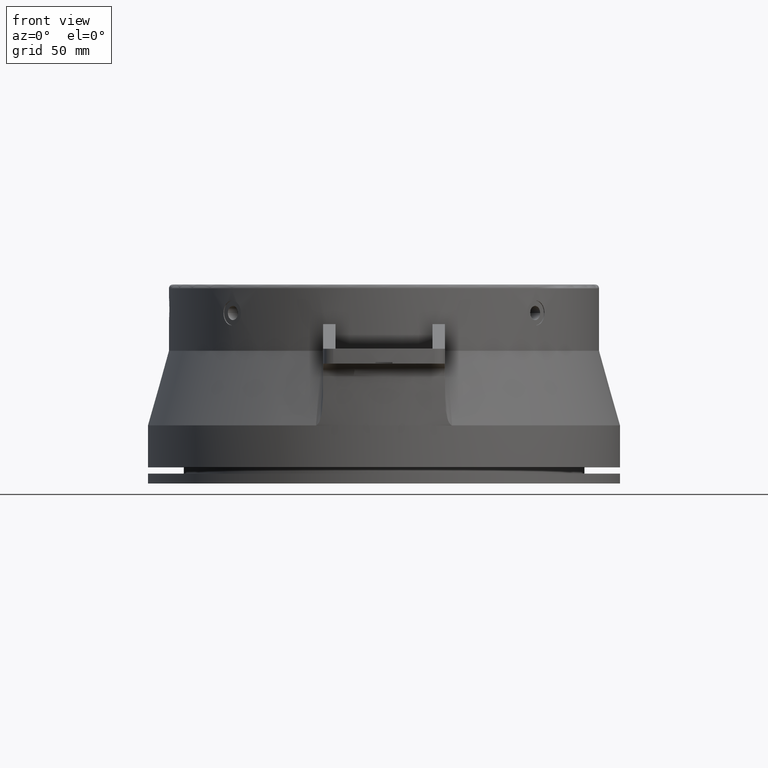
[diagram: clean part render]
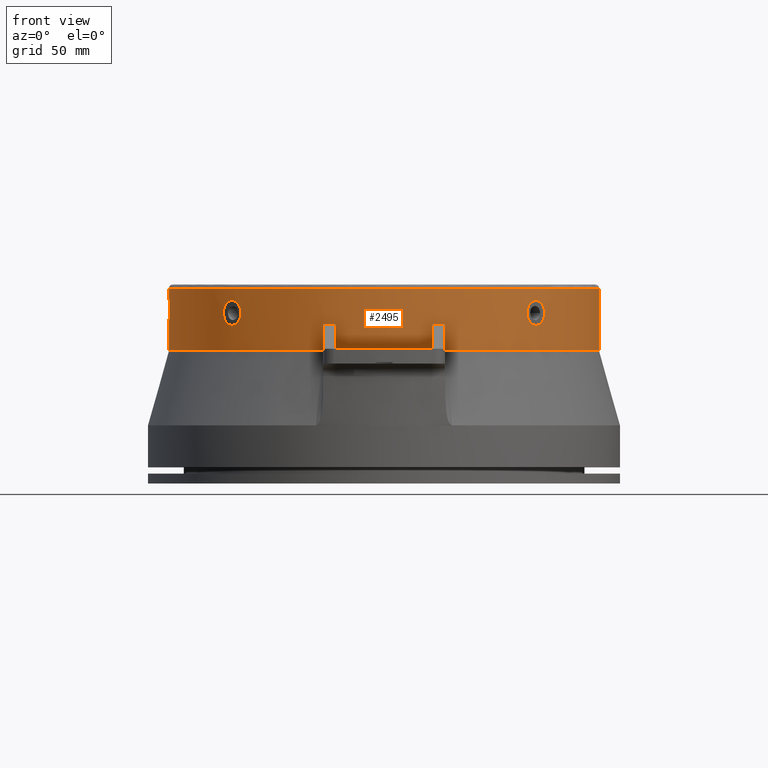
[diagram: same view with one face highlighted and labeled with its STEP entity id]
A machine part, front view. The second image highlights one B-rep face of the part: STEP entity #2495.
In plain terms, the highlighted cylindrical surface (partial cylindrical patch) has radius 174 mm, axis along (0, 0, 1).
Its self-contained STEP definition (entity closure, byte-faithful):
#530=CARTESIAN_POINT('',(-5.061878816674E1,-1.664744373307E2,
-5.359999999921E1));
#679=CARTESIAN_POINT('',(4.851759561495E1,-1.670989015995E2,-5.2E1));
#896=CARTESIAN_POINT('',(1.157621524504E2,-1.299042880741E2,-2.3E1));
#897=CARTESIAN_POINT('',(1.157621524504E2,-1.299042880741E2,-2.340440991359E1));
#898=CARTESIAN_POINT('',(1.157985436669E2,-1.298718723303E2,-2.420655662957E1));
#899=CARTESIAN_POINT('',(1.159614201266E2,-1.297265429984E2,-2.539777088484E1));
#900=CARTESIAN_POINT('',(1.162299222878E2,-1.294861603566E2,-2.655294007485E1));
#901=CARTESIAN_POINT('',(1.165996332599E2,-1.291535150981E2,-2.765706809689E1));
#902=CARTESIAN_POINT('',(1.170644512908E2,-1.287325589060E2,-2.869350260323E1));
#903=CARTESIAN_POINT('',(1.176166742702E2,-1.282284406845E2,-2.964708723912E1));
#904=CARTESIAN_POINT('',(1.182471369624E2,-1.276475181536E2,-3.050366302267E1));
#905=CARTESIAN_POINT('',(1.189454624641E2,-1.269972778718E2,-3.125060741790E1));
#906=CARTESIAN_POINT('',(1.197002586108E2,-1.262863088630E2,-3.187694056549E1));
#907=CARTESIAN_POINT('',(1.204994590769E2,-1.255241328420E2,-3.237358485605E1));
#908=CARTESIAN_POINT('',(1.213305336092E2,-1.247211382003E2,-3.273341378977E1));
#909=CARTESIAN_POINT('',(1.221807969415E2,-1.238883940595E2,-3.295134556826E1));
#910=CARTESIAN_POINT('',(1.230375722556E2,-1.230375720219E2,-3.302432719975E1));
#911=CARTESIAN_POINT('',(1.238883935261E2,-1.221807974801E2,-3.295134563272E1));
#912=CARTESIAN_POINT('',(1.247211378656E2,-1.213305339541E2,-3.273341391802E1));
#913=CARTESIAN_POINT('',(1.255241322875E2,-1.204994596532E2,-3.237358513567E1));
#914=CARTESIAN_POINT('',(1.262863081740E2,-1.197002593380E2,-3.187694109282E1));
#915=CARTESIAN_POINT('',(1.269972772781E2,-1.189454630979E2,-3.125060800527E1));
#916=CARTESIAN_POINT('',(1.276475174261E2,-1.182471377479E2,-3.050366397107E1));
#917=CARTESIAN_POINT('',(1.282284401539E2,-1.176166748489E2,-2.964708811292E1));
#918=CARTESIAN_POINT('',(1.287325582517E2,-1.170644520104E2,-2.869350400610E1));
#919=CARTESIAN_POINT('',(1.291535147033E2,-1.165996336978E2,-2.765706923283E1));
#920=CARTESIAN_POINT('',(1.294861599703E2,-1.162299227183E2,-2.655294157046E1));
#921=CARTESIAN_POINT('',(1.297265428062E2,-1.159614203420E2,-2.539777217430E1));
#922=CARTESIAN_POINT('',(1.298718723094E2,-1.157985436904E2,-2.420655712721E1));
#923=CARTESIAN_POINT('',(1.299042880741E2,-1.157621524504E2,-2.340441007938E1));
#924=CARTESIAN_POINT('',(1.299042880741E2,-1.157621524504E2,-2.3E1));
#926=CARTESIAN_POINT('',(1.299042880741E2,-1.157621524504E2,-2.3E1));
#927=CARTESIAN_POINT('',(1.299042880741E2,-1.157621524504E2,-2.259559003146E1));
#928=CARTESIAN_POINT('',(1.298718722363E2,-1.157985437726E2,-2.179344537594E1));
#929=CARTESIAN_POINT('',(1.297265452819E2,-1.159614175651E2,-2.060224633934E1));
#930=CARTESIAN_POINT('',(1.294861675334E2,-1.162299142915E2,-1.944708763988E1));
#931=CARTESIAN_POINT('',(1.291535196303E2,-1.165996282429E2,-1.834294389265E1));
#932=CARTESIAN_POINT('',(1.287325646581E2,-1.170644449623E2,-1.730650993905E1));
#933=CARTESIAN_POINT('',(1.282284462507E2,-1.176166682034E2,-1.635292182177E1));
#934=CARTESIAN_POINT('',(1.276475235479E2,-1.182471311404E2,-1.549634393049E1));
#935=CARTESIAN_POINT('',(1.269972826743E2,-1.189454573398E2,-1.474939731642E1));
#936=CARTESIAN_POINT('',(1.262863128306E2,-1.197002544292E2,-1.412306236915E1));
#937=CARTESIAN_POINT('',(1.255241359114E2,-1.204994558824E2,-1.362641676987E1));
#938=CARTESIAN_POINT('',(1.247211404881E2,-1.213305312651E2,-1.326658691338E1));
#939=CARTESIAN_POINT('',(1.238883944750E2,-1.221807965238E2,-1.304865445656E1));
#940=CARTESIAN_POINT('',(1.230375723805E2,-1.230375719018E2,-1.297567274234E1));
#941=CARTESIAN_POINT('',(1.221807955854E2,-1.238883954039E2,-1.304865457410E1));
#942=CARTESIAN_POINT('',(1.213305308893E2,-1.247211408518E2,-1.326658706538E1));
#943=CARTESIAN_POINT('',(1.204994551033E2,-1.255241366612E2,-1.362641715099E1));
#944=CARTESIAN_POINT('',(1.197002536263E2,-1.262863135912E2,-1.412306294897E1));
#945=CARTESIAN_POINT('',(1.189454565680E2,-1.269972833965E2,-1.474939805741E1));
#946=CARTESIAN_POINT('',(1.182471306278E2,-1.276475240225E2,-1.549634454720E1));
#947=CARTESIAN_POINT('',(1.176166676273E2,-1.282284467788E2,-1.635292271482E1));
#948=CARTESIAN_POINT('',(1.170644446813E2,-1.287325649133E2,-1.730651049183E1));
#949=CARTESIAN_POINT('',(1.165996278890E2,-1.291535199497E2,-1.834294480763E1));
#950=CARTESIAN_POINT('',(1.162299141734E2,-1.294861676392E2,-1.944708808144E1));
#951=CARTESIAN_POINT('',(1.159614174234E2,-1.297265454085E2,-2.060224708462E1));
#952=CARTESIAN_POINT('',(1.157985437472E2,-1.298718722589E2,-2.179344581481E1));
#953=CARTESIAN_POINT('',(1.157621524504E2,-1.299042880741E2,-2.259559020692E1));
#954=CARTESIAN_POINT('',(1.157621524504E2,-1.299042880741E2,-2.3E1));
#956=CARTESIAN_POINT('',(-1.299042880741E2,-1.157621524504E2,-2.3E1));
#957=CARTESIAN_POINT('',(-1.299042880741E2,-1.157621524504E2,
-2.340440996469E1));
#958=CARTESIAN_POINT('',(-1.298718723222E2,-1.157985436759E2,
-2.420655677917E1));
#959=CARTESIAN_POINT('',(-1.297265429543E2,-1.159614201760E2,
-2.539777117717E1));
#960=CARTESIAN_POINT('',(-1.294861602562E2,-1.162299223998E2,
-2.655294048679E1));
#961=CARTESIAN_POINT('',(-1.291535149201E2,-1.165996334573E2,
-2.765706861612E1));
#962=CARTESIAN_POINT('',(-1.287325586290E2,-1.170644515957E2,
-2.869350320938E1));
#963=CARTESIAN_POINT('',(-1.282284402979E2,-1.176166746922E2,
-2.964708789370E1));
#964=CARTESIAN_POINT('',(-1.276475176361E2,-1.182471375215E2,
-3.050366370378E1));
#965=CARTESIAN_POINT('',(-1.269972772308E2,-1.189454631491E2,
-3.125060807345E1));
#966=CARTESIAN_POINT('',(-1.262863080441E2,-1.197002594755E2,
-3.187694119724E1));
#967=CARTESIAN_POINT('',(-1.255241320841E2,-1.204994598642E2,
-3.237358523688E1));
#968=CARTESIAN_POINT('',(-1.247211378203E2,-1.213305340019E2,
-3.273341394967E1));
#969=CARTESIAN_POINT('',(-1.238883930392E2,-1.221807979735E2,
-3.295134571269E1));
#970=CARTESIAN_POINT('',(-1.230375723793E2,-1.230375718960E2,
-3.302432717125E1));
#971=CARTESIAN_POINT('',(-1.221807971248E2,-1.238883938790E2,
-3.295134560233E1));
#972=CARTESIAN_POINT('',(-1.213305338657E2,-1.247211379502E2,
-3.273341387174E1));
#973=CARTESIAN_POINT('',(-1.204994594280E2,-1.255241325045E2,
-3.237358503032E1));
#974=CARTESIAN_POINT('',(-1.197002590888E2,-1.262863084100E2,
-3.187694090993E1));
#975=CARTESIAN_POINT('',(-1.189454628988E2,-1.269972774643E2,
-3.125060781517E1));
#976=CARTESIAN_POINT('',(-1.182471375850E2,-1.276475175768E2,
-3.050366377255E1));
#977=CARTESIAN_POINT('',(-1.176166747266E2,-1.282284402659E2,
-2.964708792321E1));
#978=CARTESIAN_POINT('',(-1.170644519217E2,-1.287325583323E2,
-2.869350382976E1));
#979=CARTESIAN_POINT('',(-1.165996336403E2,-1.291535147551E2,
-2.765706908160E1));
#980=CARTESIAN_POINT('',(-1.162299226857E2,-1.294861599995E2,
-2.655294145079E1));
#981=CARTESIAN_POINT('',(-1.159614203276E2,-1.297265428190E2,
-2.539777208908E1));
#982=CARTESIAN_POINT('',(-1.157985436877E2,-1.298718723117E2,
-2.420655708340E1));
#983=CARTESIAN_POINT('',(-1.157621524504E2,-1.299042880741E2,
-2.340441006438E1));
#984=CARTESIAN_POINT('',(-1.157621524504E2,-1.299042880741E2,-2.3E1));
#986=CARTESIAN_POINT('',(-1.157621524504E2,-1.299042880741E2,-2.3E1));
#987=CARTESIAN_POINT('',(-1.157621524504E2,-1.299042880741E2,
-2.259559007621E1));
#988=CARTESIAN_POINT('',(-1.157985437647E2,-1.298718722434E2,
-2.179344550789E1));
#989=CARTESIAN_POINT('',(-1.159614175214E2,-1.297265453208E2,
-2.060224659877E1));
#990=CARTESIAN_POINT('',(-1.162299141903E2,-1.294861676242E2,
-1.944708801271E1));
#991=CARTESIAN_POINT('',(-1.165996280643E2,-1.291535197914E2,
-1.834294436171E1));
#992=CARTESIAN_POINT('',(-1.170644446893E2,-1.287325649061E2,
-1.730651048204E1));
#993=CARTESIAN_POINT('',(-1.176166678226E2,-1.282284465997E2,
-1.635292241235E1));
#994=CARTESIAN_POINT('',(-1.182471306409E2,-1.276475240102E2,
-1.549634453904E1));
#995=CARTESIAN_POINT('',(-1.189454567231E2,-1.269972832514E2,
-1.474939790636E1));
#996=CARTESIAN_POINT('',(-1.197002536583E2,-1.262863135606E2,
-1.412306293263E1));
#997=CARTESIAN_POINT('',(-1.204994551731E2,-1.255241365943E2,
-1.362641711245E1));
#998=CARTESIAN_POINT('',(-1.213305309236E2,-1.247211408184E2,
-1.326658705438E1));
#999=CARTESIAN_POINT('',(-1.221807955874E2,-1.238883954011E2,
-1.304865458487E1));
#1000=CARTESIAN_POINT('',(-1.230375722670E2,-1.230375720170E2,
-1.297567272238E1));
#1001=CARTESIAN_POINT('',(-1.238883949432E2,-1.221807960501E2,
-1.304865452562E1));
#1002=CARTESIAN_POINT('',(-1.247211407212E2,-1.213305310250E2,
-1.326658700131E1));
#1003=CARTESIAN_POINT('',(-1.255241363556E2,-1.204994554206E2,
-1.362641700053E1));
#1004=CARTESIAN_POINT('',(-1.262863132612E2,-1.197002539749E2,
-1.412306269379E1));
#1005=CARTESIAN_POINT('',(-1.269972831328E2,-1.189454568498E2,
-1.474939778821E1));
#1006=CARTESIAN_POINT('',(-1.276475238116E2,-1.182471308557E2,
-1.549634426945E1));
#1007=CARTESIAN_POINT('',(-1.282284466198E2,-1.176166678009E2,
-1.635292244571E1));
#1008=CARTESIAN_POINT('',(-1.287325648001E2,-1.170644448059E2,
-1.730651024405E1));
#1009=CARTESIAN_POINT('',(-1.291535198762E2,-1.165996279705E2,
-1.834294459350E1));
#1010=CARTESIAN_POINT('',(-1.294861675978E2,-1.162299142195E2,
-1.944708791135E1));
#1011=CARTESIAN_POINT('',(-1.297265453907E2,-1.159614174434E2,
-2.060224696607E1));
#1012=CARTESIAN_POINT('',(-1.298718722557E2,-1.157985437508E2,
-2.179344575452E1));
#1013=CARTESIAN_POINT('',(-1.299042880741E2,-1.157621524504E2,
-2.259559018647E1));
#1014=CARTESIAN_POINT('',(-1.299042880741E2,-1.157621524504E2,-2.3E1));
#1016=CARTESIAN_POINT('',(0.E0,0.E0,-3.E0));
#1017=DIRECTION('',(0.E0,0.E0,1.E0));
#1018=DIRECTION('',(-1.E0,0.E0,0.E0));
#1019=AXIS2_PLACEMENT_3D('',#1016,#1017,#1018);
#1021=CARTESIAN_POINT('',(0.E0,0.E0,-5.36E1));
#1022=DIRECTION('',(0.E0,0.E0,1.E0));
#1023=DIRECTION('',(2.909125755924E-1,-9.567496398548E-1,0.E0));
#1024=AXIS2_PLACEMENT_3D('',#1021,#1022,#1023);
#1026=CARTESIAN_POINT('',(4.851759561495E1,-1.670989015995E2,-5.2E1));
#1027=CARTESIAN_POINT('',(4.861794986010E1,-1.670697634864E2,
-5.215916568107E1));
#1028=CARTESIAN_POINT('',(4.881983634346E1,-1.670109500229E2,
-5.245285306899E1));
#1029=CARTESIAN_POINT('',(4.912707363083E1,-1.669208334081E2,
-5.282201209593E1));
#1030=CARTESIAN_POINT('',(4.943181246828E1,-1.668308412443E2,
-5.311503456892E1));
#1031=CARTESIAN_POINT('',(4.973822766921E1,-1.667397468349E2,
-5.333983867877E1));
#1032=CARTESIAN_POINT('',(5.004581357279E1,-1.666476830850E2,
-5.349646652113E1));
#1033=CARTESIAN_POINT('',(5.034334438253E1,-1.665580316407E2,
-5.358328941295E1));
#1034=CARTESIAN_POINT('',(5.052876912347E1,-1.665018088296E2,
-5.359999999877E1));
#1035=CARTESIAN_POINT('',(5.061878816478E1,-1.664744373313E2,
-5.359999999881E1));
#1037=CARTESIAN_POINT('',(0.E0,0.E0,-5.2E1));
#1038=DIRECTION('',(0.E0,0.E0,1.E0));
#1039=DIRECTION('',(2.788367564078E-1,-9.603385149394E-1,0.E0));
#1040=AXIS2_PLACEMENT_3D('',#1037,#1038,#1039);
#1042=DIRECTION('',(0.E0,0.E0,1.E0));
#1043=VECTOR('',#1042,2.E1);
#1044=CARTESIAN_POINT('',(4.927189282601E1,-1.668780410280E2,-5.2E1));
#1045=LINE('',#1044,#1043);
#1046=CARTESIAN_POINT('',(0.E0,0.E0,-3.2E1));
#1047=DIRECTION('',(0.E0,0.E0,1.E0));
#1048=DIRECTION('',(2.257005334828E-1,-9.741967302273E-1,0.E0));
#1049=AXIS2_PLACEMENT_3D('',#1046,#1047,#1048);
#1051=DIRECTION('',(0.E0,0.E0,1.E0));
#1052=VECTOR('',#1051,2.E1);
#1053=CARTESIAN_POINT('',(3.927189282601E1,-1.695102310596E2,-5.2E1));
#1054=LINE('',#1053,#1052);
#1055=CARTESIAN_POINT('',(0.E0,0.E0,-5.2E1));
#1056=DIRECTION('',(0.E0,0.E0,1.E0));
#1057=DIRECTION('',(-2.257005334828E-1,-9.741967302273E-1,0.E0));
#1058=AXIS2_PLACEMENT_3D('',#1055,#1056,#1057);
#1060=DIRECTION('',(0.E0,0.E0,1.E0));
#1061=VECTOR('',#1060,2.E1);
#1062=CARTESIAN_POINT('',(-3.927189282601E1,-1.695102310596E2,-5.2E1));
#1063=LINE('',#1062,#1061);
#1064=CARTESIAN_POINT('',(0.E0,0.E0,-3.2E1));
#1065=DIRECTION('',(0.E0,0.E0,1.E0));
#1066=DIRECTION('',(-2.831717978506E-1,-9.590692013103E-1,0.E0));
#1067=AXIS2_PLACEMENT_3D('',#1064,#1065,#1066);
#1069=DIRECTION('',(0.E0,0.E0,1.E0));
#1070=VECTOR('',#1069,2.E1);
#1071=CARTESIAN_POINT('',(-4.927189282601E1,-1.668780410280E2,-5.2E1));
#1072=LINE('',#1071,#1070);
#1073=CARTESIAN_POINT('',(0.E0,0.E0,-5.2E1));
#1074=DIRECTION('',(0.E0,0.E0,1.E0));
#1075=DIRECTION('',(-2.831717978506E-1,-9.590692013103E-1,0.E0));
#1076=AXIS2_PLACEMENT_3D('',#1073,#1074,#1075);
#1078=CARTESIAN_POINT('',(-5.061878816674E1,-1.664744373307E2,
-5.359999999921E1));
#1079=CARTESIAN_POINT('',(-5.052816486937E1,-1.665019925612E2,
-5.359999999919E1));
#1080=CARTESIAN_POINT('',(-5.034228475931E1,-1.665583502343E2,
-5.358290742915E1));
#1081=CARTESIAN_POINT('',(-5.004947761024E1,-1.666465798437E2,
-5.349761890808E1));
#1082=CARTESIAN_POINT('',(-4.974268979718E1,-1.667384180455E2,
-5.334285600118E1));
#1083=CARTESIAN_POINT('',(-4.943034689865E1,-1.668312794099E2,
-5.311424784493E1));
#1084=CARTESIAN_POINT('',(-4.912346417232E1,-1.669218938736E2,
-5.281789443459E1));
#1085=CARTESIAN_POINT('',(-4.882098466517E1,-1.670106124615E2,
-5.245413819926E1));
#1086=CARTESIAN_POINT('',(-4.861837164415E1,-1.670696410203E2,
-5.215983464524E1));
#1087=CARTESIAN_POINT('',(-4.851759561600E1,-1.670989015991E2,-5.2E1));
#1089=CARTESIAN_POINT('',(0.E0,0.E0,-5.36E1));
#1090=DIRECTION('',(0.E0,0.E0,1.E0));
#1091=DIRECTION('',(-1.E0,0.E0,0.E0));
#1092=AXIS2_PLACEMENT_3D('',#1089,#1090,#1091);
#1094=CARTESIAN_POINT('',(-1.737124060049E2,-1.E1,-2.E1));
#1095=CARTESIAN_POINT('',(-1.737124060049E2,-1.E1,-2.037472215970E1));
#1096=CARTESIAN_POINT('',(-1.737148152107E2,-9.958286570692E0,
-2.111905662746E1));
#1097=CARTESIAN_POINT('',(-1.737255623824E2,-9.769792975574E0,
-2.222964265430E1));
#1098=CARTESIAN_POINT('',(-1.737427840152E2,-9.459940634263E0,
-2.330607155617E1));
#1099=CARTESIAN_POINT('',(-1.737658238549E2,-9.028678959533E0,
-2.434784871488E1));
#1100=CARTESIAN_POINT('',(-1.737932468507E2,-8.486834713773E0,
-2.532858151189E1));
#1101=CARTESIAN_POINT('',(-1.738239799045E2,-7.835018067453E0,
-2.624767689174E1));
#1102=CARTESIAN_POINT('',(-1.738561770373E2,-7.088020905086E0,
-2.708377952791E1));
#1103=CARTESIAN_POINT('',(-1.738885461018E2,-6.247680254115E0,
-2.783523514351E1));
#1104=CARTESIAN_POINT('',(-1.739192497999E2,-5.328774716193E0,
-2.848666123562E1));
#1105=CARTESIAN_POINT('',(-1.739466661914E2,-4.347477311423E0,
-2.902890159028E1));
#1106=CARTESIAN_POINT('',(-1.739696754808E2,-3.305588198043E0,
-2.946007843585E1));
#1107=CARTESIAN_POINT('',(-1.739868633708E2,-2.229801247565E0,
-2.976976945912E1));
#1108=CARTESIAN_POINT('',(-1.739976012784E2,-1.118219320002E0,
-2.995839937919E1));
#1109=CARTESIAN_POINT('',(-1.74E2,-3.743694700235E-1,-3.E1));
#1110=CARTESIAN_POINT('',(-1.74E2,-1.846850332344E-13,-3.E1));
#1112=CARTESIAN_POINT('',(-1.74E2,-3.689820553222E-13,-1.E1));
#1113=CARTESIAN_POINT('',(-1.74E2,-3.745105607444E-1,-1.E1));
#1114=CARTESIAN_POINT('',(-1.739975989390E2,-1.118559437836E0,
-1.004164136195E1));
#1115=CARTESIAN_POINT('',(-1.739868620346E2,-2.229881938496E0,
-1.023025470921E1));
#1116=CARTESIAN_POINT('',(-1.739696722774E2,-3.305777100400E0,
-1.053997844403E1));
#1117=CARTESIAN_POINT('',(-1.739466604869E2,-4.347687671575E0,
-1.097121262014E1));
#1118=CARTESIAN_POINT('',(-1.739192494841E2,-5.328800577836E0,
-1.151333348625E1));
#1119=CARTESIAN_POINT('',(-1.738885422513E2,-6.247720214261E0,
-1.216489393348E1));
#1120=CARTESIAN_POINT('',(-1.738562569625E2,-7.086044350088E0,
-1.291428145764E1));
#1121=CARTESIAN_POINT('',(-1.738240022376E2,-7.834570247111E0,
-1.375163435537E1));
#1122=CARTESIAN_POINT('',(-1.737932529228E2,-8.486704714272E0,
-1.467122395420E1));
#1123=CARTESIAN_POINT('',(-1.737658305536E2,-9.028552509624E0,
-1.565187580310E1));
#1124=CARTESIAN_POINT('',(-1.737427860826E2,-9.459902703558E0,
-1.669382547577E1));
#1125=CARTESIAN_POINT('',(-1.737255666465E2,-9.769717162849E0,
-1.777003223851E1));
#1126=CARTESIAN_POINT('',(-1.737148153595E2,-9.958284333465E0,
-1.888084134596E1));
#1127=CARTESIAN_POINT('',(-1.737124060049E2,-1.E1,-1.962523706110E1));
#1128=CARTESIAN_POINT('',(-1.737124060049E2,-1.E1,-2.E1));
#1263=DIRECTION('',(0.E0,5.086102005765E-14,1.E0));
#1264=VECTOR('',#1263,7.E0);
#1265=CARTESIAN_POINT('',(-1.74E2,-3.689820553222E-13,-1.E1));
#1266=LINE('',#1265,#1264);
#1303=DIRECTION('',(0.E0,0.E0,1.E0));
#1304=VECTOR('',#1303,2.36E1);
#1305=CARTESIAN_POINT('',(-1.74E2,0.E0,-5.36E1));
#1306=LINE('',#1305,#1304);
#1312=DIRECTION('',(0.E0,0.E0,1.E0));
#1313=VECTOR('',#1312,5.06E1);
#1314=CARTESIAN_POINT('',(1.74E2,-1.865422273625E-14,-5.36E1));
#1315=LINE('',#1314,#1313);
#1476=CARTESIAN_POINT('',(-1.74E2,0.E0,-5.36E1));
#1477=CARTESIAN_POINT('',(1.74E2,2.130885430516E-14,-5.36E1));
#1478=VERTEX_POINT('',#1476);
#1479=VERTEX_POINT('',#1477);
#1510=CARTESIAN_POINT('',(-1.74E2,-1.846850332344E-13,-3.E1));
#1511=VERTEX_POINT('',#1510);
#1532=VERTEX_POINT('',#896);
#1533=VERTEX_POINT('',#924);
#1538=VERTEX_POINT('',#956);
#1539=VERTEX_POINT('',#984);
#1544=VERTEX_POINT('',#1094);
#1545=VERTEX_POINT('',#1112);
#1555=CARTESIAN_POINT('',(-4.927189282601E1,-1.668780410280E2,-3.2E1));
#1556=CARTESIAN_POINT('',(-3.927189282601E1,-1.695102310596E2,-3.2E1));
#1557=VERTEX_POINT('',#1555);
#1558=VERTEX_POINT('',#1556);
#1559=CARTESIAN_POINT('',(-3.927189282601E1,-1.695102310596E2,-5.2E1));
#1560=VERTEX_POINT('',#1559);
#1561=CARTESIAN_POINT('',(-4.927189282601E1,-1.668780410280E2,-5.2E1));
#1562=VERTEX_POINT('',#1561);
#1563=CARTESIAN_POINT('',(3.927189282601E1,-1.695102310596E2,-3.2E1));
#1564=CARTESIAN_POINT('',(4.927189282601E1,-1.668780410280E2,-3.2E1));
#1565=VERTEX_POINT('',#1563);
#1566=VERTEX_POINT('',#1564);
#1567=CARTESIAN_POINT('',(4.927189282601E1,-1.668780410280E2,-5.2E1));
#1568=VERTEX_POINT('',#1567);
#1569=CARTESIAN_POINT('',(3.927189282601E1,-1.695102310596E2,-5.2E1));
#1570=VERTEX_POINT('',#1569);
#1646=VERTEX_POINT('',#679);
#1647=VERTEX_POINT('',#1035);
#1650=VERTEX_POINT('',#530);
#1652=VERTEX_POINT('',#1087);
#1683=CARTESIAN_POINT('',(1.74E2,2.130885430516E-14,-3.E0));
#1684=CARTESIAN_POINT('',(-1.74E2,0.E0,-3.E0));
#1685=VERTEX_POINT('',#1683);
#1686=VERTEX_POINT('',#1684);
#2447=CARTESIAN_POINT('',(3.105398120938E-14,0.E0,-1.6905E2));
#2448=DIRECTION('',(0.E0,0.E0,1.E0));
#2449=DIRECTION('',(-1.E0,0.E0,0.E0));
#2450=AXIS2_PLACEMENT_3D('',#2447,#2448,#2449);
#2451=CYLINDRICAL_SURFACE('',#2450,1.74E2);
#2453=ORIENTED_EDGE('',*,*,#2452,.T.);
#2455=ORIENTED_EDGE('',*,*,#2454,.F.);
#2456=ORIENTED_EDGE('',*,*,#1976,.F.);
#2457=ORIENTED_EDGE('',*,*,#2127,.F.);
#2458=ORIENTED_EDGE('',*,*,#2146,.T.);
#2459=ORIENTED_EDGE('',*,*,#2183,.T.);
#2461=ORIENTED_EDGE('',*,*,#2460,.F.);
#2463=ORIENTED_EDGE('',*,*,#2462,.F.);
#2464=ORIENTED_EDGE('',*,*,#2366,.F.);
#2466=ORIENTED_EDGE('',*,*,#2465,.T.);
#2467=ORIENTED_EDGE('',*,*,#2438,.F.);
#2468=ORIENTED_EDGE('',*,*,#2216,.F.);
#2470=ORIENTED_EDGE('',*,*,#2469,.T.);
#2471=ORIENTED_EDGE('',*,*,#1953,.F.);
#2472=ORIENTED_EDGE('',*,*,#1980,.F.);
#2474=ORIENTED_EDGE('',*,*,#2473,.T.);
#2476=ORIENTED_EDGE('',*,*,#2475,.F.);
#2478=ORIENTED_EDGE('',*,*,#2477,.F.);
#2480=ORIENTED_EDGE('',*,*,#2479,.T.);
#2481=EDGE_LOOP('',(#2453,#2455,#2456,#2457,#2458,#2459,#2461,#2463,#2464,#2466,
#2467,#2468,#2470,#2471,#2472,#2474,#2476,#2478,#2480));
#2482=FACE_OUTER_BOUND('',#2481,.F.);
#2484=ORIENTED_EDGE('',*,*,#2483,.T.);
#2486=ORIENTED_EDGE('',*,*,#2485,.T.);
#2487=EDGE_LOOP('',(#2484,#2486));
#2488=FACE_BOUND('',#2487,.F.);
#2490=ORIENTED_EDGE('',*,*,#2489,.T.);
#2492=ORIENTED_EDGE('',*,*,#2491,.T.);
#2493=EDGE_LOOP('',(#2490,#2492));
#2494=FACE_BOUND('',#2493,.F.);
#925=B_SPLINE_CURVE_WITH_KNOTS('',3,(#896,#897,#898,#899,#900,#901,#902,#903,
#904,#905,#906,#907,#908,#909,#910,#911,#912,#913,#914,#915,#916,#917,#918,#919,
#920,#921,#922,#923,#924),.UNSPECIFIED.,.F.,.F.,(4,1,1,1,1,1,1,1,1,1,1,1,1,1,1,
1,1,1,1,1,1,1,1,1,1,1,4),(0.E0,3.846153846154E-2,7.692307692308E-2,
1.153846153846E-1,1.538461538462E-1,1.923076923077E-1,2.307692307692E-1,
2.692307692308E-1,3.076923076923E-1,3.461538461538E-1,3.846153846154E-1,
4.230769230769E-1,4.615384615385E-1,5.E-1,5.384615384615E-1,5.769230769231E-1,
6.153846153846E-1,6.538461538462E-1,6.923076923077E-1,7.307692307692E-1,
7.692307692308E-1,8.076923076923E-1,8.461538461538E-1,8.846153846154E-1,
9.230769230769E-1,9.615384615385E-1,1.E0),.UNSPECIFIED.);
#955=B_SPLINE_CURVE_WITH_KNOTS('',3,(#926,#927,#928,#929,#930,#931,#932,#933,
#934,#935,#936,#937,#938,#939,#940,#941,#942,#943,#944,#945,#946,#947,#948,#949,
#950,#951,#952,#953,#954),.UNSPECIFIED.,.F.,.F.,(4,1,1,1,1,1,1,1,1,1,1,1,1,1,1,
1,1,1,1,1,1,1,1,1,1,1,4),(0.E0,3.846153846154E-2,7.692307692308E-2,
1.153846153846E-1,1.538461538462E-1,1.923076923077E-1,2.307692307692E-1,
2.692307692308E-1,3.076923076923E-1,3.461538461538E-1,3.846153846154E-1,
4.230769230769E-1,4.615384615385E-1,5.E-1,5.384615384615E-1,5.769230769231E-1,
6.153846153846E-1,6.538461538462E-1,6.923076923077E-1,7.307692307692E-1,
7.692307692308E-1,8.076923076923E-1,8.461538461538E-1,8.846153846154E-1,
9.230769230769E-1,9.615384615385E-1,1.E0),.UNSPECIFIED.);
#985=B_SPLINE_CURVE_WITH_KNOTS('',3,(#956,#957,#958,#959,#960,#961,#962,#963,
#964,#965,#966,#967,#968,#969,#970,#971,#972,#973,#974,#975,#976,#977,#978,#979,
#980,#981,#982,#983,#984),.UNSPECIFIED.,.F.,.F.,(4,1,1,1,1,1,1,1,1,1,1,1,1,1,1,
1,1,1,1,1,1,1,1,1,1,1,4),(0.E0,3.846153846154E-2,7.692307692308E-2,
1.153846153846E-1,1.538461538462E-1,1.923076923077E-1,2.307692307692E-1,
2.692307692308E-1,3.076923076923E-1,3.461538461538E-1,3.846153846154E-1,
4.230769230769E-1,4.615384615385E-1,5.E-1,5.384615384615E-1,5.769230769231E-1,
6.153846153846E-1,6.538461538462E-1,6.923076923077E-1,7.307692307692E-1,
7.692307692308E-1,8.076923076923E-1,8.461538461538E-1,8.846153846154E-1,
9.230769230769E-1,9.615384615385E-1,1.E0),.UNSPECIFIED.);
#1015=B_SPLINE_CURVE_WITH_KNOTS('',3,(#986,#987,#988,#989,#990,#991,#992,#993,
#994,#995,#996,#997,#998,#999,#1000,#1001,#1002,#1003,#1004,#1005,#1006,#1007,
#1008,#1009,#1010,#1011,#1012,#1013,#1014),.UNSPECIFIED.,.F.,.F.,(4,1,1,1,1,1,1,
1,1,1,1,1,1,1,1,1,1,1,1,1,1,1,1,1,1,1,4),(0.E0,3.846153846154E-2,
7.692307692308E-2,1.153846153846E-1,1.538461538462E-1,1.923076923077E-1,
2.307692307692E-1,2.692307692308E-1,3.076923076923E-1,3.461538461538E-1,
3.846153846154E-1,4.230769230769E-1,4.615384615385E-1,5.E-1,5.384615384615E-1,
5.769230769231E-1,6.153846153846E-1,6.538461538462E-1,6.923076923077E-1,
7.307692307692E-1,7.692307692308E-1,8.076923076923E-1,8.461538461538E-1,
8.846153846154E-1,9.230769230769E-1,9.615384615385E-1,1.E0),.UNSPECIFIED.);
#1020=CIRCLE('',#1019,1.74E2);
#1025=CIRCLE('',#1024,1.74E2);
#1036=B_SPLINE_CURVE_WITH_KNOTS('',3,(#1026,#1027,#1028,#1029,#1030,#1031,#1032,
#1033,#1034,#1035),.UNSPECIFIED.,.F.,.F.,(4,1,1,1,1,1,1,4),(0.E0,
1.428571428571E-1,2.857142857143E-1,4.285714285714E-1,5.714285714286E-1,
7.142857142857E-1,8.571428571429E-1,1.E0),.UNSPECIFIED.);
#1041=CIRCLE('',#1040,1.74E2);
#1050=CIRCLE('',#1049,1.74E2);
#1059=CIRCLE('',#1058,1.74E2);
#1068=CIRCLE('',#1067,1.74E2);
#1077=CIRCLE('',#1076,1.74E2);
#1088=B_SPLINE_CURVE_WITH_KNOTS('',3,(#1078,#1079,#1080,#1081,#1082,#1083,#1084,
#1085,#1086,#1087),.UNSPECIFIED.,.F.,.F.,(4,1,1,1,1,1,1,4),(0.E0,
1.428571428571E-1,2.857142857143E-1,4.285714285714E-1,5.714285714286E-1,
7.142857142857E-1,8.571428571429E-1,1.E0),.UNSPECIFIED.);
#1093=CIRCLE('',#1092,1.74E2);
#1111=B_SPLINE_CURVE_WITH_KNOTS('',3,(#1094,#1095,#1096,#1097,#1098,#1099,#1100,
#1101,#1102,#1103,#1104,#1105,#1106,#1107,#1108,#1109,#1110),.UNSPECIFIED.,.F.,
.F.,(4,1,1,1,1,1,1,1,1,1,1,1,1,1,4),(0.E0,7.142857142857E-2,1.428571428571E-1,
2.142857142857E-1,2.857142857143E-1,3.571428571429E-1,4.285714285714E-1,5.E-1,
5.714285714286E-1,6.428571428571E-1,7.142857142857E-1,7.857142857143E-1,
8.571428571429E-1,9.285714285714E-1,1.E0),.UNSPECIFIED.);
#1129=B_SPLINE_CURVE_WITH_KNOTS('',3,(#1112,#1113,#1114,#1115,#1116,#1117,#1118,
#1119,#1120,#1121,#1122,#1123,#1124,#1125,#1126,#1127,#1128),.UNSPECIFIED.,.F.,
.F.,(4,1,1,1,1,1,1,1,1,1,1,1,1,1,4),(0.E0,7.142857142857E-2,1.428571428571E-1,
2.142857142857E-1,2.857142857143E-1,3.571428571429E-1,4.285714285714E-1,5.E-1,
5.714285714286E-1,6.428571428571E-1,7.142857142857E-1,7.857142857143E-1,
8.571428571429E-1,9.285714285714E-1,1.E0),.UNSPECIFIED.);
#1953=EDGE_CURVE('',#1650,#1652,#1088,.T.);
#1976=EDGE_CURVE('',#1647,#1479,#1025,.T.);
#1980=EDGE_CURVE('',#1478,#1650,#1093,.T.);
#2127=EDGE_CURVE('',#1646,#1647,#1036,.T.);
#2146=EDGE_CURVE('',#1646,#1568,#1041,.T.);
#2183=EDGE_CURVE('',#1568,#1566,#1045,.T.);
#2216=EDGE_CURVE('',#1562,#1557,#1072,.T.);
#2366=EDGE_CURVE('',#1560,#1570,#1059,.T.);
#2438=EDGE_CURVE('',#1557,#1558,#1068,.T.);
#2452=EDGE_CURVE('',#1686,#1685,#1020,.T.);
#2454=EDGE_CURVE('',#1479,#1685,#1315,.T.);
#2460=EDGE_CURVE('',#1565,#1566,#1050,.T.);
#2462=EDGE_CURVE('',#1570,#1565,#1054,.T.);
#2465=EDGE_CURVE('',#1560,#1558,#1063,.T.);
#2469=EDGE_CURVE('',#1562,#1652,#1077,.T.);
#2473=EDGE_CURVE('',#1478,#1511,#1306,.T.);
#2475=EDGE_CURVE('',#1544,#1511,#1111,.T.);
#2477=EDGE_CURVE('',#1545,#1544,#1129,.T.);
#2479=EDGE_CURVE('',#1545,#1686,#1266,.T.);
#2483=EDGE_CURVE('',#1538,#1539,#985,.T.);
#2485=EDGE_CURVE('',#1539,#1538,#1015,.T.);
#2489=EDGE_CURVE('',#1532,#1533,#925,.T.);
#2491=EDGE_CURVE('',#1533,#1532,#955,.T.);
#2495=ADVANCED_FACE('',(#2482,#2488,#2494),#2451,.T.);